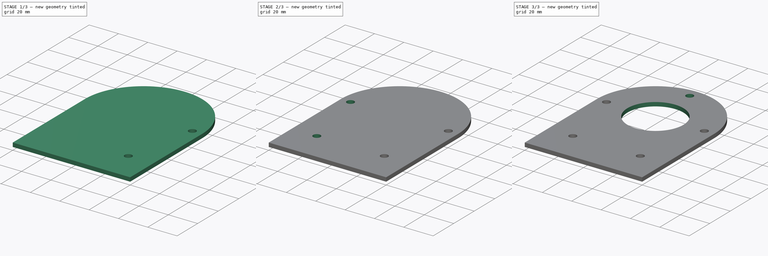
[diagram: build sequence overview — one tinted view per stage of 3, left to right]
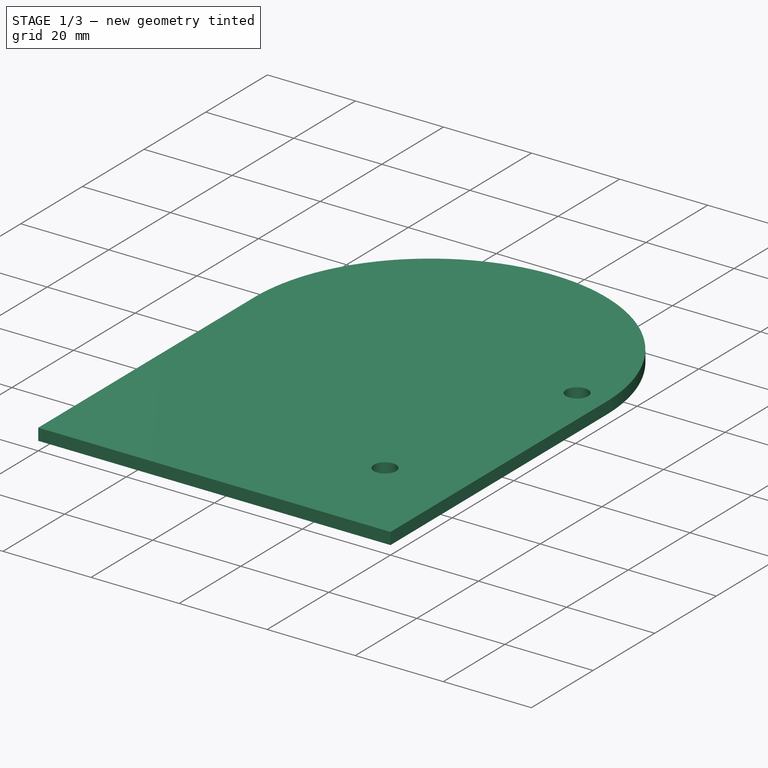
[diagram: stage 1 of 3 — iso view after this stage's code; geometry added in this stage tinted green]
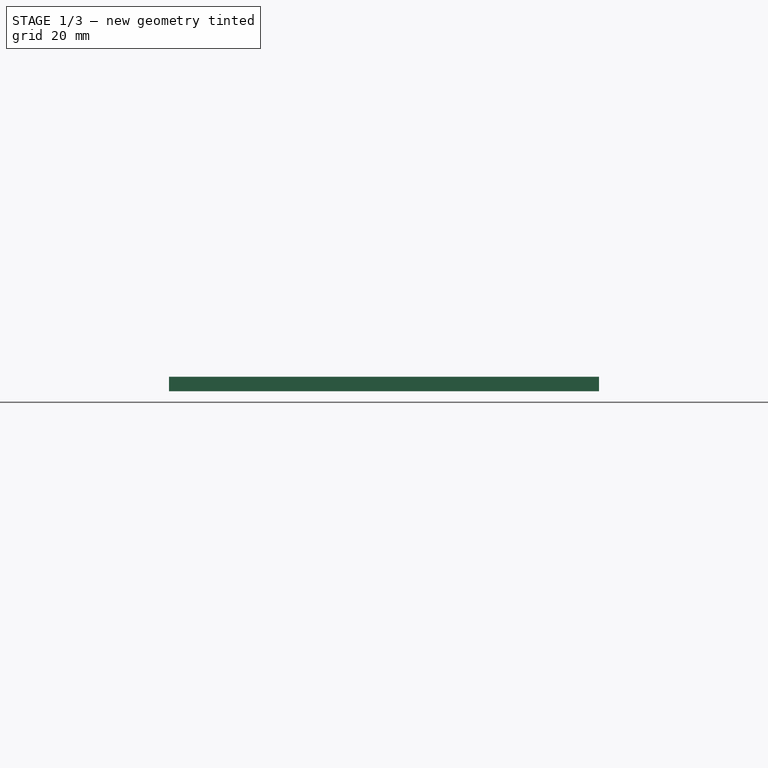
[diagram: stage 1 of 3 — front view after this stage's code; geometry added in this stage tinted green]
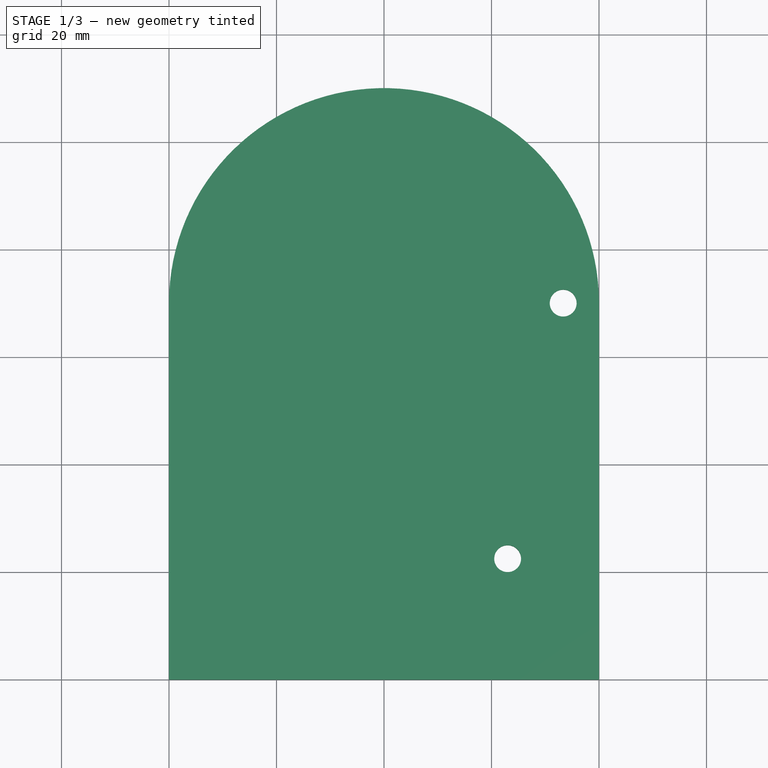
[diagram: stage 1 of 3 — top view after this stage's code; geometry added in this stage tinted green]
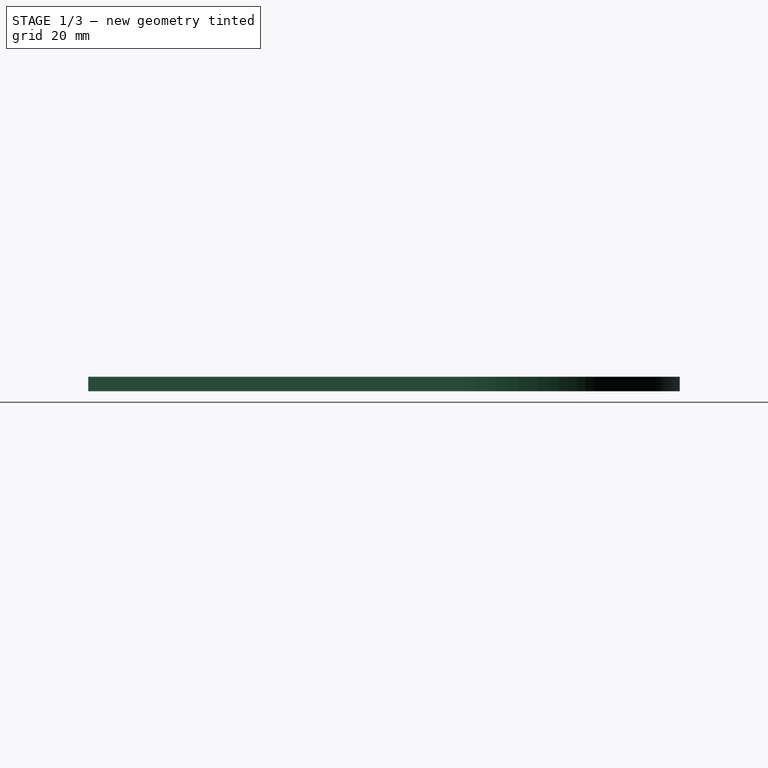
[diagram: stage 1 of 3 — right view after this stage's code; geometry added in this stage tinted green]
FCSTD DOCUMENT  (FreeCAD 0.15R4664 (Git))
Label: Motor_Base
License: CC-BY 3.0
LicenseURL: http://creativecommons.org/licenses/by/3.0/
objects: Drawing::FeatureView×23, Sketcher::SketchObject×4, PartDesign::Pocket×3, Drawing::FeatureViewPart×3, PartDesign::Pad×1, PartDesign::Mirrored×1, Drawing::FeaturePage×1
note: 13 computed .brp shape members not serialized (recipe doc carries the construction recipe); baked Part::Feature solids carry a one-line shape summary decoded from their .brp

FEATURE [Sketcher::SketchObject] Sketch
  sketch-geometry (4):
    g0: LineSegment StartX=40 StartY=70.05 StartZ=0 EndX=40 EndY=0 EndZ=0
    g1: LineSegment StartX=40 StartY=0 StartZ=0 EndX=-40 EndY=0 EndZ=0
    g2: LineSegment StartX=-40 StartY=0 StartZ=0 EndX=-40 EndY=70.05 EndZ=0
    g3: ArcOfCircle CenterX=0 CenterY=70.05 CenterZ=0 NormalX=0 NormalY=0 NormalZ=1 Radius=40 StartAngle=0 EndAngle=3.14159
  constraints (13):
    c: Coincident(g0,g1)
    c: Coincident(g1,g2)
    c: Horizontal(g1)
    c: Vertical(g0)
    c: Vertical(g2)
    c: PointOnObject(g0,g-1)
    c: DistanceX(g1,g0) = 80
    c: DistanceX(g-1,g1) = -40
    c: DistanceY(g0,g0) = 70.05
    c: DistanceY(g1,g2) = 70.05
    c: Coincident(g3,g0)
    c: Coincident(g3,g2)
    c: DistanceY(g-1,g3) = 70.05
FEATURE [PartDesign::Pad] Pad
  Length = 2.7
  Length2 = 33.15
  Sketch = -> Sketch
  Type = 0
FEATURE [Sketcher::SketchObject] Sketch001
  ExternalGeometry = -> [Pad]
  Placement = pos=(0,0,2.7) rot=(0,0,1;0rad)
  Support = -> Pad [Face6]
  sketch-geometry (2):
    g0: Circle CenterX=33.333 CenterY=70.05 CenterZ=0 NormalX=0 NormalY=0 NormalZ=1 Radius=2.5
    g1: Circle CenterX=23 CenterY=22.5 CenterZ=0 NormalX=0 NormalY=0 NormalZ=1 Radius=2.5
  constraints (6):
    c: Radius(g0) = 2.5
    c: DistanceX(g-2,g0) = 33.333
    c: DistanceY(g-1,g0) = 70.05
    c: Radius(g1) = 2.5
    c: Distance(g1,g-3) = 17
    c: DistanceY(g-1,g1) = 22.5
FEATURE [PartDesign::Pocket] Pocket
  Length = 5
  Sketch = -> Sketch001
  Type = 0
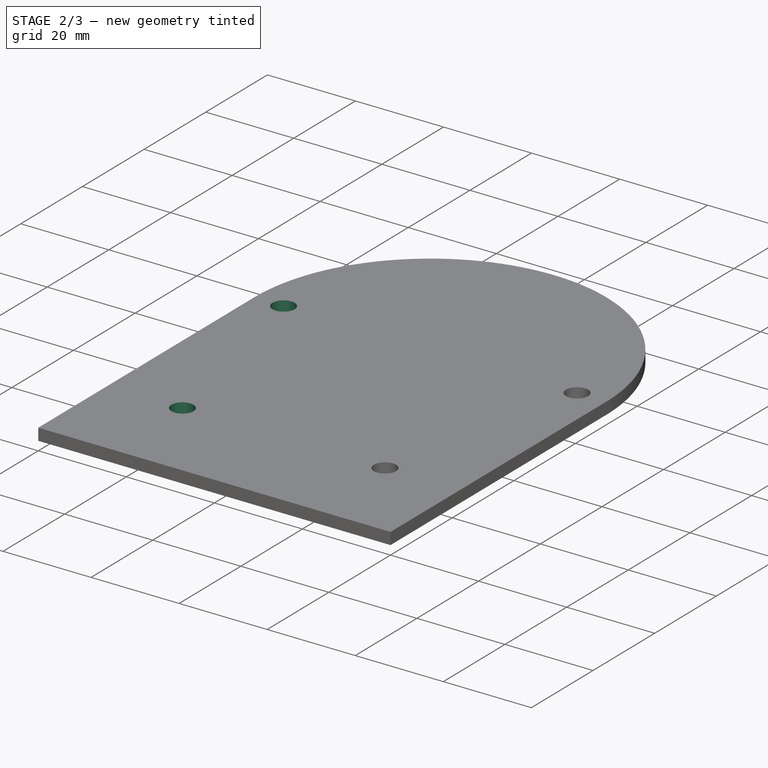
[diagram: stage 2 of 3 — iso view after this stage's code; geometry added in this stage tinted green]
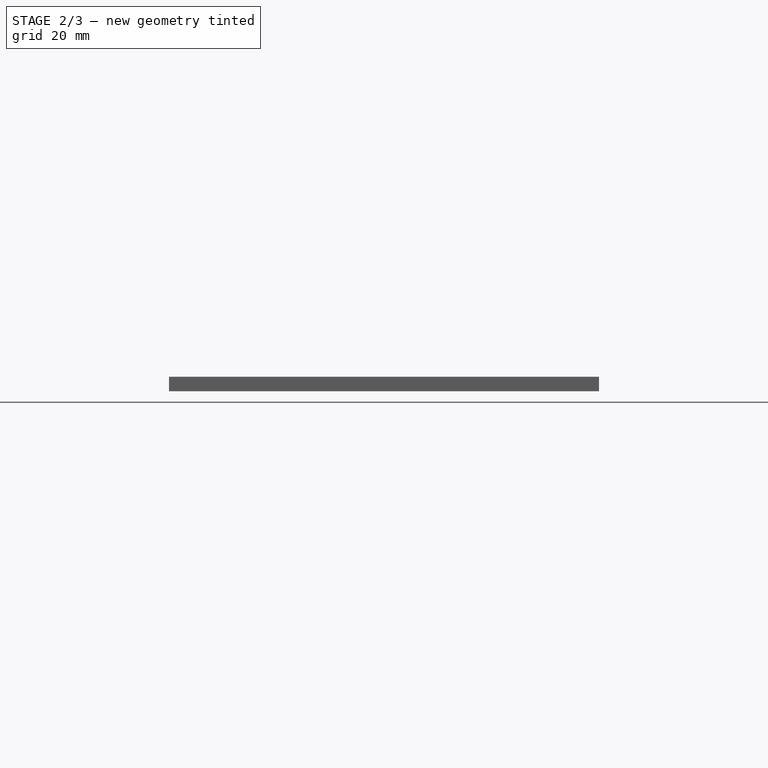
[diagram: stage 2 of 3 — front view after this stage's code; geometry added in this stage tinted green]
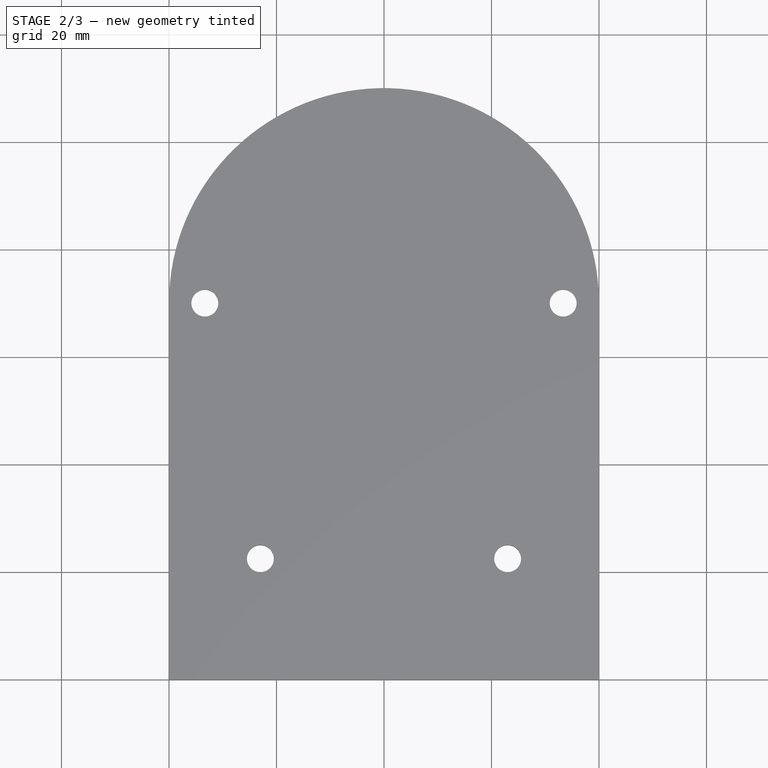
[diagram: stage 2 of 3 — top view after this stage's code; geometry added in this stage tinted green]
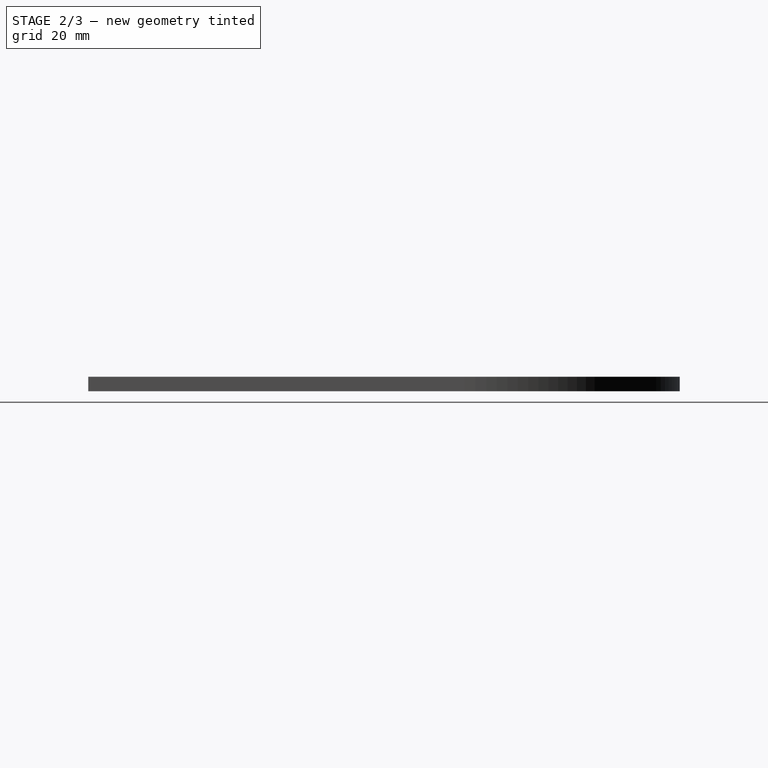
[diagram: stage 2 of 3 — right view after this stage's code; geometry added in this stage tinted green]
FEATURE [PartDesign::Mirrored] Mirrored
  MirrorPlane = -> Sketch001 [V_Axis]
  Originals = -> [Pocket]
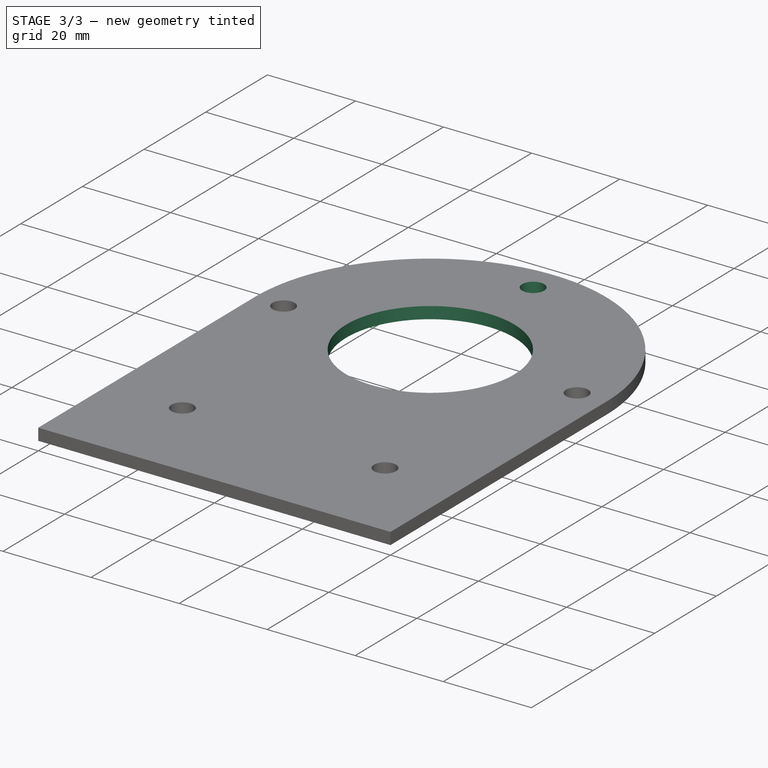
[diagram: stage 3 of 3 — iso view after this stage's code; geometry added in this stage tinted green]
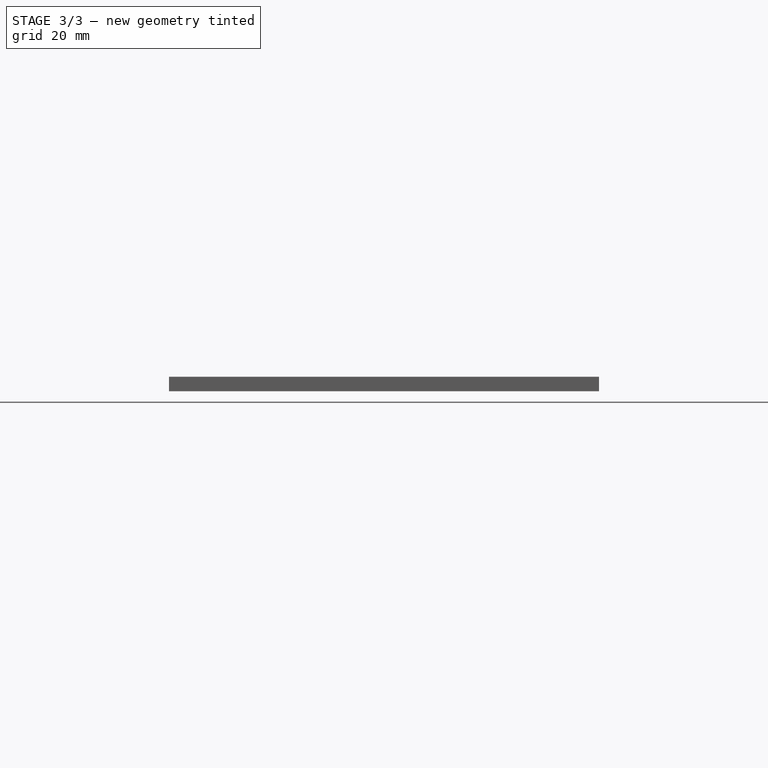
[diagram: stage 3 of 3 — front view after this stage's code; geometry added in this stage tinted green]
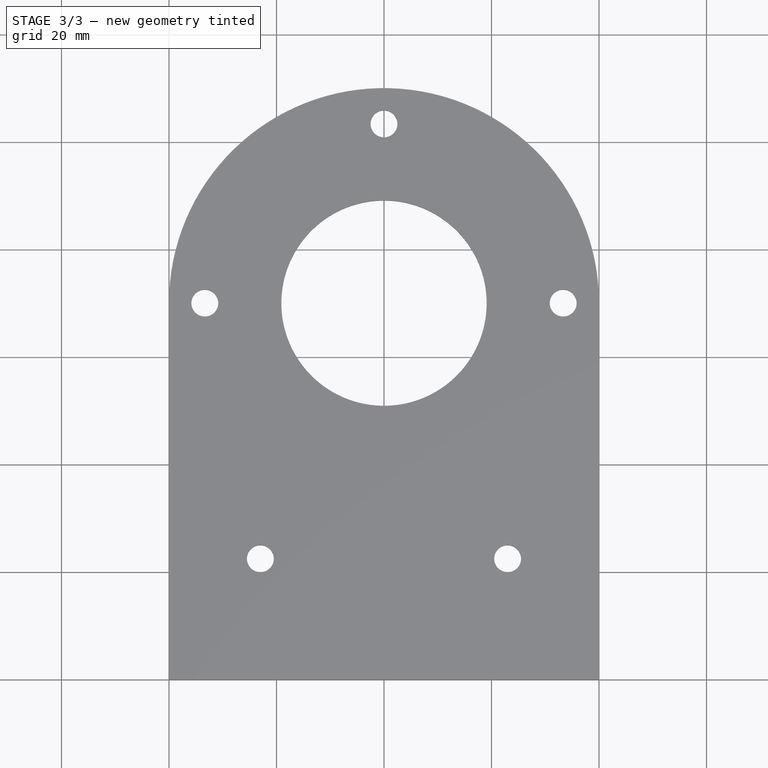
[diagram: stage 3 of 3 — top view after this stage's code; geometry added in this stage tinted green]
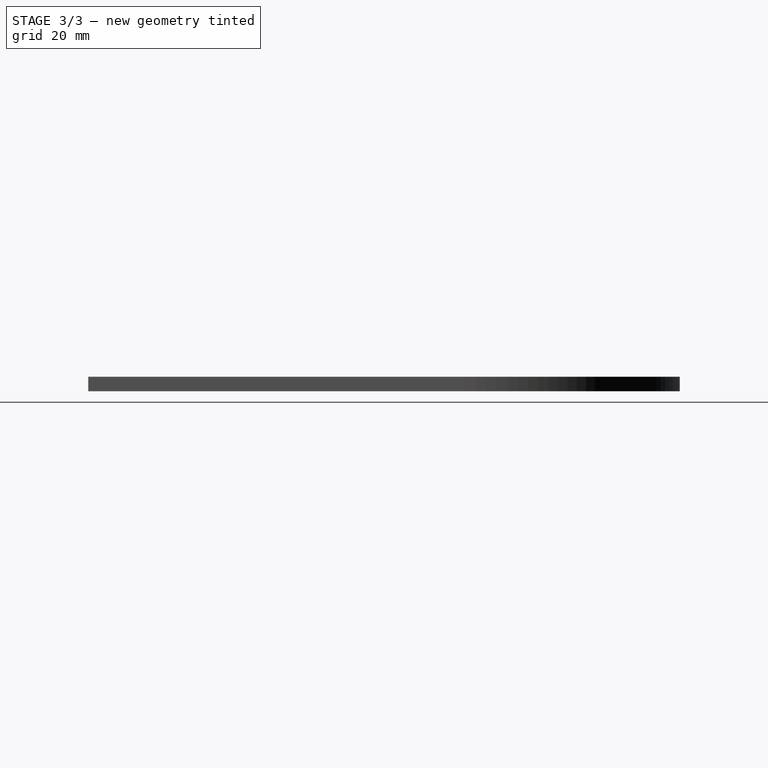
[diagram: stage 3 of 3 — right view after this stage's code; geometry added in this stage tinted green]
FEATURE [Sketcher::SketchObject] Sketch002
  Placement = pos=(0,0,2.7) rot=(0,0,1;0rad)
  Support = -> Mirrored [Face5]
  sketch-geometry (1):
    g0: Circle CenterX=0 CenterY=103.4 CenterZ=0 NormalX=0 NormalY=0 NormalZ=1 Radius=2.5
  constraints (3):
    c: PointOnObject(g0,g-2)
    c: Radius(g0) = 2.5
    c: DistanceY(g-1,g0) = 103.4
FEATURE [PartDesign::Pocket] Pocket001
  Length = 5
  Sketch = -> Sketch002
  Type = 0
FEATURE [Sketcher::SketchObject] Sketch003
  Placement = pos=(0,0,2.7) rot=(0,0,1;0rad)
  Support = -> Pocket001 [Face5]
  sketch-geometry (1):
    g0: Circle CenterX=0 CenterY=70.05 CenterZ=0 NormalX=0 NormalY=0 NormalZ=1 Radius=19.1
  constraints (3):
    c: PointOnObject(g0,g-2)
    c: Radius(g0) = 19.1
    c: DistanceY(g-1,g0) = 70.05
FEATURE [PartDesign::Pocket] Pocket002
  Length = 5
  Sketch = -> Sketch003
  Type = 0
FEATURE [Drawing::FeatureViewPart] Ortho  label="Ortho_0_0"
  Direction = (1,0,0)
  HiddenWidth = 0.15
  LineWidth = 0.35
  Rotation = -90
  ShowHiddenLines = false
  ShowSmoothLines = false
  Source = -> Pocket002
  Tolerance = 0.05
  ViewResult = <g id="Ortho_0_0"\n   transform="rotate(-90,160,140.233) translate(160,140.233) scale(1,1)"\n  >\n<g   stroke="rgb(0, 0, 0)"\n   stroke-width="0.35"\n   stroke-linecap="butt"\n   stroke-linejoin="miter"\n   fill="none"\n   transform="scale(1,-1)"\n  >\n<path id= "1" d=" M 2.7 -110.05 L 0 -110.05 " />\n</g>\n<g   stroke="rgb(0, 0, 0)"\n   stroke-width="0.35"\n   stroke-linecap="butt"\n   stroke-linejoin="miter"\n   fill="none"\n   transform="scale(1,-1)"\n  >\n<path id= "1" d=" M 0 0 L 2.7 0 " />\n<path id= "2" d=" M 0 -70.05 L 0 0 " />\n<path id= "3" d=" M 2.7 -70.05 L 2.7 0 " />\n<path d="M0,-70.05 L0,-74.5286  L0,-78.9508  L0,-83.2612  L0,-87.4053  L0,-91.3313  L0,-94.9896  L0,-98.3343  L0,-101.323  L0,-103.919  L0,-106.089  L0,-107.805  L0,-109.047  L0,-109.798  L0,-110.05 " /><path d="M2.7,-70.05 L2.7,-74.5286  L2.7,-78.9508  L2.7,-83.2612  L2.7,-87.4053  L2.7,-91.3313  L2.7,-94.9896  L2.7,-98.3343  L2.7,-101.323  L2.7,-103.919  L2.7,-106.089  L2.7,-107.805  L2.7,-109.047  L2.7,-109.798  L2.7,-110.05 " /></g>\n</g>
  Visible = true
  X = 160
  Y = 140.233
FEATURE [Drawing::FeatureViewPart] Ortho001  label="Ortho_0_1"
  Direction = (0,0,1)
  HiddenWidth = 0.15
  LineWidth = 0.35
  Rotation = 90
  ShowHiddenLines = false
  ShowSmoothLines = false
  Source = -> Pocket002
  Tolerance = 0.05
  ViewResult = <g id="Ortho_0_1"\n   transform="rotate(90,160,73.77) translate(160,73.77) scale(1,1)"\n  >\n<g   stroke="rgb(0, 0, 0)"\n   stroke-width="0.35"\n   stroke-linecap="butt"\n   stroke-linejoin="miter"\n   fill="none"\n   transform="scale(1,-1)"\n  >\n<path id= "1" d=" M 40 70.05 L 40 0 " />\n<path d="M40 70.05 A40 40 0 0 1 -40 70.05" /><path id= "3" d=" M 40 0 L -40 0 " />\n<path id= "4" d=" M -40 0 L -40 70.05 " />\n<circle cx ="23" cy ="22.5" r ="2.5" /><circle cx ="33.333" cy ="70.05" r ="2.5" /><circle cx ="-33.333" cy ="70.05" r ="2.5" /><circle cx ="-23" cy ="22.5" r ="2.5" /><circle cx ="0" cy ="103.4" r ="2.5" /><circle cx ="0" cy ="70.05" r ="19.1" /></g>\n</g>
  Visible = true
  X = 160
  Y = 73.77
FEATURE [Drawing::FeatureViewPart] Ortho002  label="Ortho_-1_1"
  Direction = (0.57735,-0.57735,0.57735)
  HiddenWidth = 0.15
  LineWidth = 0.35
  Rotation = 60
  ShowHiddenLines = false
  ShowSmoothLines = false
  Source = -> Pocket002
  Tolerance = 0.05
  ViewResult = <blob: 2697 chars omitted>
  Visible = true
  X = 60
  Y = 97.3328
FEATURE [Drawing::FeatureView] centerLines001
  Rotation = 0
  ViewResult = <g  transform="scale(1.000000,1.000000)" stroke="rgb(0,0,255)"  stroke-width="0.300000" >\n<path d="M 230.050000,40.437000 L 230.050000,42.437000 M 230.050000,44.437000 L 230.050000,50.437000 M 230.050000,52.437000 L 230.050000,54.437000 M 230.050000,56.437000 L 230.050000,62.437000 M 230.050000,64.437000 L 230.050000,66.437000 M 230.050000,68.437000 L 230.050000,74.437000 M 230.050000,76.437000 L 230.050000,78.437000 M 230.050000,80.437000 L 230.050000,86.437000 M 230.050000,88.437000 L 230.050000,90.437000 M 230.050000,92.437000 L 230.050000,98.437000 M 230.050000,100.437000 L 230.050000,102.437000 M 230.050000,104.437000 L 230.050000,110.437000 "/>\n<path d="M 230.050000,40.437000 L 230.050000,38.437000 M 230.050000,36.437000 L 230.050000,36.088545 "/>\n</g> 
  Visible = true
  X = 0
  Y = 0
FEATURE [Drawing::FeatureView] centerLines002
  Rotation = 0
  ViewResult = <g  transform="scale(1.000000,1.000000)" stroke="rgb(0,0,255)"  stroke-width="0.300000" >\n<path d="M 227.550000,40.437000 L 229.550000,40.437000 M 231.550000,40.437000 L 234.894215,40.437000 "/>\n<path d="M 227.550000,40.437000 L 225.550000,40.437000 "/>\n</g> 
  Visible = true
  X = 0
  Y = 0
FEATURE [Drawing::FeatureView] centerLines003
  Rotation = 0
  ViewResult = <g  transform="scale(1.000000,1.000000)" stroke="rgb(0,0,255)"  stroke-width="0.300000" >\n<path d="M 227.550000,107.103000 L 229.550000,107.103000 M 231.550000,107.103000 L 235.152137,107.103000 "/>\n<path d="M 227.550000,107.103000 L 225.550000,107.103000 "/>\n</g> 
  Visible = true
  X = 0
  Y = 0
FEATURE [Drawing::FeatureView] dim002
  Rotation = 0
  ViewResult = <g   >\n<line x1="158.000000" y1="137.533000" x2="152.165101" y2="137.533000" style="stroke:rgb(0,0,255);stroke-width:0.30" />\n<line x1="158.000000" y1="140.233000" x2="152.165101" y2="140.233000" style="stroke:rgb(0,0,255);stroke-width:0.30" />\n<line x1="153.165101" y1="137.533000" x2="153.165101" y2="140.233000" style="stroke:rgb(0,0,255);stroke-width:0.30" />\n<polygon points="153.165101,137.533000 154.165101,134.533000 153.165101,133.533000 152.165101,134.533000" style="fill:rgb(0,0,255);stroke:rgb(0,0,255);stroke-width:0" /><polygon points="153.165101,140.233000 152.165101,143.233000 153.165101,144.233000 154.165101,143.233000" style="fill:rgb(0,0,255);stroke:rgb(0,0,255);stroke-width:0" />\n<text x="149.592515" y="141.611207" font-family="Verdana" font-size="3.6" fill="rgb(255,0,0)" text-anchor="inherit" transform="rotate(-90.000000 149.592515,141.611207)" >2.7</text>\n</g> 
  Visible = true
  X = 0
  Y = 0
FEATURE [Drawing::FeatureView] dim003
  Rotation = 0
  ViewResult = <g   >\n<line x1="160.000000" y1="135.533000" x2="160.000000" y2="133.134136" style="stroke:rgb(0,0,255);stroke-width:0.30" />\n<line x1="270.050000" y1="135.533000" x2="270.050000" y2="133.134136" style="stroke:rgb(0,0,255);stroke-width:0.30" />\n<line x1="160.000000" y1="134.134136" x2="270.050000" y2="134.134136" style="stroke:rgb(0,0,255);stroke-width:0.30" />\n<polygon points="160.000000,134.134136 163.000000,135.134136 164.000000,134.134136 163.000000,133.134136" style="fill:rgb(0,0,255);stroke:rgb(0,0,255);stroke-width:0" /><polygon points="270.050000,134.134136 267.050000,133.134136 266.050000,134.134136 267.050000,135.134136" style="fill:rgb(0,0,255);stroke:rgb(0,0,255);stroke-width:0" />\n<text x="207.584790" y="132.873180" font-family="Verdana" font-size="3.6" fill="rgb(255,0,0)" text-anchor="inherit" transform="rotate(0.000000 207.584790,132.873180)" >110.05</text>\n</g> 
  Visible = true
  X = 0
  Y = 0
FEATURE [Drawing::FeatureView] dim004
  Rotation = 0
  ViewResult = <g   >\n<line x1="158.000000" y1="33.770000" x2="154.314202" y2="33.770000" style="stroke:rgb(0,0,255);stroke-width:0.30" />\n<line x1="158.000000" y1="113.770000" x2="154.314202" y2="113.770000" style="stroke:rgb(0,0,255);stroke-width:0.30" />\n<line x1="155.314202" y1="33.770000" x2="155.314202" y2="113.770000" style="stroke:rgb(0,0,255);stroke-width:0.30" />\n<polygon points="155.314202,33.770000 154.314202,36.770000 155.314202,37.770000 156.314202,36.770000" style="fill:rgb(0,0,255);stroke:rgb(0,0,255);stroke-width:0" /><polygon points="155.314202,113.770000 156.314202,110.770000 155.314202,109.770000 154.314202,110.770000" style="fill:rgb(0,0,255);stroke:rgb(0,0,255);stroke-width:0" />\n<text x="152.960957" y="95.306442" font-family="Verdana" font-size="3.6" fill="rgb(255,0,0)" text-anchor="inherit" transform="rotate(-90.000000 152.960957,95.306442)" >80mm</text>\n</g> 
  Visible = true
  X = 0
  Y = 0
FEATURE [Drawing::FeatureView] centerLines004
  Rotation = 0
  ViewResult = <g  transform="scale(1.000000,1.000000)" stroke="rgb(0,0,255)"  stroke-width="0.300000" >\n<path d="M 182.500000,50.770000 L 182.500000,52.770000 M 182.500000,54.770000 L 182.500000,60.770000 M 182.500000,62.770000 L 182.500000,64.770000 M 182.500000,66.770000 L 182.500000,72.770000 M 182.500000,74.770000 L 182.500000,76.770000 M 182.500000,78.770000 L 182.500000,84.770000 M 182.500000,86.770000 L 182.500000,88.770000 M 182.500000,90.770000 L 182.500000,96.770000 M 182.500000,98.770000 L 182.500000,100.770000 "/>\n<path d="M 182.500000,50.770000 L 182.500000,48.770000 M 182.500000,46.770000 L 182.500000,45.065157 "/>\n</g> 
  Visible = true
  X = 0
  Y = 0
FEATURE [Drawing::FeatureView] centerLines005
  Rotation = 0
  ViewResult = <g  transform="scale(1.000000,1.000000)" stroke="rgb(0,0,255)"  stroke-width="0.300000" >\n<path d="M 180.000000,50.770000 L 182.000000,50.770000 M 184.000000,50.770000 L 187.685154,50.770000 "/>\n<path d="M 180.000000,50.770000 L 178.000000,50.770000 "/>\n</g> 
  Visible = true
  X = 0
  Y = 0
FEATURE [Drawing::FeatureView] centerLines006
  Rotation = 0
  ViewResult = <g  transform="scale(1.000000,1.000000)" stroke="rgb(0,0,255)"  stroke-width="0.300000" >\n<path d="M 180.000000,96.770000 L 182.000000,96.770000 M 184.000000,96.770000 L 187.567123,96.770000 "/>\n<path d="M 180.000000,96.770000 L 178.000000,96.770000 "/>\n</g> 
  Visible = true
  X = 0
  Y = 0
FEATURE [Drawing::FeatureView] dim005
  Rotation = 0
  ViewResult = <g   >\n<line x1="189.685154" y1="50.770000" x2="194.241422" y2="50.770000" style="stroke:rgb(0,0,255);stroke-width:0.30" />\n<line x1="189.567123" y1="96.770000" x2="194.241422" y2="96.770000" style="stroke:rgb(0,0,255);stroke-width:0.30" />\n<line x1="193.241422" y1="50.770000" x2="193.241422" y2="96.770000" style="stroke:rgb(0,0,255);stroke-width:0.30" />\n<polygon points="193.241422,50.770000 192.241422,53.770000 193.241422,54.770000 194.241422,53.770000" style="fill:rgb(0,0,255);stroke:rgb(0,0,255);stroke-width:0" /><polygon points="193.241422,96.770000 194.241422,93.770000 193.241422,92.770000 192.241422,93.770000" style="fill:rgb(0,0,255);stroke:rgb(0,0,255);stroke-width:0" />\n<text x="197.339527" y="78.809715" font-family="Verdana" font-size="3.6" fill="rgb(255,0,0)" text-anchor="inherit" transform="rotate(-90.000000 197.339527,78.809715)" >46mm</text>\n</g> 
  Visible = true
  X = 0
  Y = 0
FEATURE [Drawing::FeatureView] centerLines007
  Rotation = 0
  ViewResult = <g  transform="scale(1.000000,1.000000)" stroke="rgb(0,0,255)"  stroke-width="0.300000" >\n<path d="M 260.900000,73.770000 L 262.900000,73.770000 M 264.900000,73.770000 L 268.204536,73.770000 "/>\n<path d="M 260.900000,73.770000 L 258.900000,73.770000 "/>\n</g> 
  Visible = true
  X = 0
  Y = 0
FEATURE [Drawing::FeatureView] centerLines008
  Rotation = 0
  ViewResult = <g  transform="scale(1.000000,1.000000)" stroke="rgb(0,0,255)"  stroke-width="0.300000" >\n<path d="M 263.400000,71.270000 L 263.400000,73.270000 M 263.400000,75.270000 L 263.400000,78.771031 "/>\n<path d="M 263.400000,71.270000 L 263.400000,69.270000 "/>\n</g> 
  Visible = true
  X = 0
  Y = 0
FEATURE [Drawing::FeatureView] dim006
  Rotation = 0
  ViewResult = <g   >\n<line x1="160.000000" y1="115.770000" x2="160.000000" y2="119.847696" style="stroke:rgb(0,0,255);stroke-width:0.30" />\n<line x1="182.500000" y1="102.770000" x2="182.500000" y2="119.847696" style="stroke:rgb(0,0,255);stroke-width:0.30" />\n<line x1="160.000000" y1="118.847696" x2="182.500000" y2="118.847696" style="stroke:rgb(0,0,255);stroke-width:0.30" />\n<polygon points="160.000000,118.847696 163.000000,119.847696 164.000000,118.847696 163.000000,117.847696" style="fill:rgb(0,0,255);stroke:rgb(0,0,255);stroke-width:0" /><polygon points="182.500000,118.847696 179.500000,117.847696 178.500000,118.847696 179.500000,119.847696" style="fill:rgb(0,0,255);stroke:rgb(0,0,255);stroke-width:0" />\n<text x="162.856152" y="124.317674" font-family="Verdana" font-size="3.6" fill="rgb(255,0,0)" text-anchor="inherit"  >22.5mm</text>\n</g> 
  Visible = true
  X = 0
  Y = 0
FEATURE [Drawing::FeatureView] dim007
  Rotation = 0
  ViewResult = <g   >\n<line x1="232.050000" y1="113.770000" x2="274.598336" y2="113.770000" style="stroke:rgb(0,0,255);stroke-width:0.30" />\n<line x1="270.204536" y1="73.770000" x2="274.598336" y2="73.770000" style="stroke:rgb(0,0,255);stroke-width:0.30" />\n<line x1="273.598336" y1="113.770000" x2="273.598336" y2="73.770000" style="stroke:rgb(0,0,255);stroke-width:0.30" />\n<polygon points="273.598336,113.770000 274.598336,110.770000 273.598336,109.770000 272.598336,110.770000" style="fill:rgb(0,0,255);stroke:rgb(0,0,255);stroke-width:0" /><polygon points="273.598336,73.770000 272.598336,76.770000 273.598336,77.770000 274.598336,76.770000" style="fill:rgb(0,0,255);stroke:rgb(0,0,255);stroke-width:0" />\n<text x="278.372135" y="100.846497" font-family="Verdana" font-size="3.6" fill="rgb(255,0,0)" text-anchor="inherit" transform="rotate(-90.000000 278.372135,100.846497)" >40mm</text>\n</g> 
  Visible = true
  X = 0
  Y = 0
FEATURE [Drawing::FeatureView] dim008
  Rotation = 0
  ViewResult = <g   >\n<line x1="230.050000" y1="31.770000" x2="230.050000" y2="23.764081" style="stroke:rgb(0,0,255);stroke-width:0.30" />\n<line x1="263.400000" y1="67.270000" x2="263.400000" y2="23.764081" style="stroke:rgb(0,0,255);stroke-width:0.30" />\n<line x1="230.050000" y1="24.764081" x2="263.400000" y2="24.764081" style="stroke:rgb(0,0,255);stroke-width:0.30" />\n<polygon points="230.050000,24.764081 233.050000,25.764081 234.050000,24.764081 233.050000,23.764081" style="fill:rgb(0,0,255);stroke:rgb(0,0,255);stroke-width:0" /><polygon points="263.400000,24.764081 260.400000,23.764081 259.400000,24.764081 260.400000,25.764081" style="fill:rgb(0,0,255);stroke:rgb(0,0,255);stroke-width:0" />\n<text x="242.270282" y="21.780456" font-family="Verdana" font-size="3.6" fill="rgb(255,0,0)" text-anchor="inherit"  >33.35mm</text>\n</g> 
  Visible = true
  X = 0
  Y = 0
FEATURE [Drawing::FeatureView] dim009
  Rotation = 0
  ViewResult = <g   >\n<line x1="162.000000" y1="113.770000" x2="194.192106" y2="113.770000" style="stroke:rgb(0,0,255);stroke-width:0.30" />\n<line x1="189.567123" y1="96.770000" x2="194.192106" y2="96.770000" style="stroke:rgb(0,0,255);stroke-width:0.30" />\n<line x1="193.192106" y1="113.770000" x2="193.192106" y2="96.770000" style="stroke:rgb(0,0,255);stroke-width:0.30" />\n<polygon points="193.192106,113.770000 194.192106,110.770000 193.192106,109.770000 192.192106,110.770000" style="fill:rgb(0,0,255);stroke:rgb(0,0,255);stroke-width:0" /><polygon points="193.192106,96.770000 192.192106,99.770000 193.192106,100.770000 194.192106,99.770000" style="fill:rgb(0,0,255);stroke:rgb(0,0,255);stroke-width:0" />\n<text x="197.644603" y="107.264698" font-family="Verdana" font-size="3.6" fill="rgb(255,0,0)" text-anchor="inherit" transform="rotate(-90.000000 197.644603,107.264698)" >17mm</text>\n</g> 
  Visible = true
  X = 0
  Y = 0
FEATURE [Drawing::FeatureView] dim010
  Rotation = 0
  ViewResult = <g   >\n<line x1="162.000000" y1="33.770000" x2="194.249931" y2="33.770000" style="stroke:rgb(0,0,255);stroke-width:0.30" />\n<line x1="189.685154" y1="50.770000" x2="194.249931" y2="50.770000" style="stroke:rgb(0,0,255);stroke-width:0.30" />\n<line x1="193.249931" y1="33.770000" x2="193.249931" y2="50.770000" style="stroke:rgb(0,0,255);stroke-width:0.30" />\n<polygon points="193.249931,33.770000 192.249931,36.770000 193.249931,37.770000 194.249931,36.770000" style="fill:rgb(0,0,255);stroke:rgb(0,0,255);stroke-width:0" /><polygon points="193.249931,50.770000 194.249931,47.770000 193.249931,46.770000 192.249931,47.770000" style="fill:rgb(0,0,255);stroke:rgb(0,0,255);stroke-width:0" />\n<text x="197.549687" y="47.942577" font-family="Verdana" font-size="3.6" fill="rgb(255,0,0)" text-anchor="inherit" transform="rotate(-90.000000 197.549687,47.942577)" >17mm</text>\n</g> 
  Visible = true
  X = 0
  Y = 0
FEATURE [Drawing::FeatureView] dim011
  Rotation = 0
  ViewResult = <g   >\n<line x1="236.894215" y1="40.437000" x2="251.236608" y2="40.437000" style="stroke:rgb(0,0,255);stroke-width:0.30" />\n<line x1="237.152137" y1="107.103000" x2="251.236608" y2="107.103000" style="stroke:rgb(0,0,255);stroke-width:0.30" />\n<line x1="250.236608" y1="40.437000" x2="250.236608" y2="107.103000" style="stroke:rgb(0,0,255);stroke-width:0.30" />\n<polygon points="250.236608,40.437000 249.236608,43.437000 250.236608,44.437000 251.236608,43.437000" style="fill:rgb(0,0,255);stroke:rgb(0,0,255);stroke-width:0" /><polygon points="250.236608,107.103000 251.236608,104.103000 250.236608,103.103000 249.236608,104.103000" style="fill:rgb(0,0,255);stroke:rgb(0,0,255);stroke-width:0" />\n<text x="254.397761" y="91.545365" font-family="Verdana" font-size="3.6" fill="rgb(255,0,0)" text-anchor="inherit" transform="rotate(-90.000000 254.397761,91.545365)" >66.666mm</text>\n</g> 
  Visible = true
  X = 0
  Y = 0
FEATURE [Drawing::FeatureView] dim012
  Rotation = 0
  ViewResult = <g   >\n<line x1="228.050000" y1="73.770000" x2="207.853692" y2="73.770000" style="stroke:rgb(0,0,255);stroke-width:0.30" />\n<line x1="228.050000" y1="33.770000" x2="207.853692" y2="33.770000" style="stroke:rgb(0,0,255);stroke-width:0.30" />\n<line x1="208.853692" y1="73.770000" x2="208.853692" y2="33.770000" style="stroke:rgb(0,0,255);stroke-width:0.30" />\n<polygon points="208.853692,73.770000 209.853692,70.770000 208.853692,69.770000 207.853692,70.770000" style="fill:rgb(0,0,255);stroke:rgb(0,0,255);stroke-width:0" /><polygon points="208.853692,33.770000 207.853692,36.770000 208.853692,37.770000 209.853692,36.770000" style="fill:rgb(0,0,255);stroke:rgb(0,0,255);stroke-width:0" />\n<text x="207.660242" y="59.970846" font-family="Verdana" font-size="3.6" fill="rgb(255,0,0)" text-anchor="inherit" transform="rotate(-90.000000 207.660242,59.970846)" >40mm</text>\n</g> 
  Visible = true
  X = 0
  Y = 0
FEATURE [Drawing::FeatureView] dim013
  Rotation = 0
  ViewResult = <g   >\n <circle cx ="182.500000" cy ="50.770000" r="0.500000" stroke="none" fill="rgb(0,0,255)" /> \n<line x1="163.263914" y1="25.062443" x2="183.997777" y2="52.771665" style="stroke:rgb(0,0,255);stroke-width:0.30" />\n<polygon points="181.002223,48.768335 180.005556,45.767226 178.605779,45.565671 178.404224,46.965448" style="fill:rgb(0,0,255);stroke:rgb(0,0,255);stroke-width:0" />\n<polygon points="183.997777,52.771665 184.994444,55.772774 186.394221,55.974329 186.595776,54.574552" style="fill:rgb(0,0,255);stroke:rgb(0,0,255);stroke-width:0" />\n<line x1="163.263914" y1="25.062443" x2="138.917541" y2="25.062443" style="stroke:rgb(0,0,255);stroke-width:0.30" />\n<text x="146.078239" y="22.198164" font-family="Verdana" font-size="3.6" fill="rgb(255,0,0)" text-anchor="inherit"  >5 x 5mm</text>\n<!--5.0-->\n<!--Ø%3.3f-->\n</g> 
  Visible = true
  X = 0
  Y = 0
FEATURE [Drawing::FeatureView] dim014
  Rotation = 0
  ViewResult = <g   >\n<line x1="182.500000" y1="102.770000" x2="182.500000" y2="119.857441" style="stroke:rgb(0,0,255);stroke-width:0.30" />\n<line x1="230.050000" y1="115.770000" x2="230.050000" y2="119.857441" style="stroke:rgb(0,0,255);stroke-width:0.30" />\n<line x1="182.500000" y1="118.857441" x2="230.050000" y2="118.857441" style="stroke:rgb(0,0,255);stroke-width:0.30" />\n<polygon points="182.500000,118.857441 185.500000,119.857441 186.500000,118.857441 185.500000,117.857441" style="fill:rgb(0,0,255);stroke:rgb(0,0,255);stroke-width:0" /><polygon points="230.050000,118.857441 227.050000,117.857441 226.050000,118.857441 227.050000,119.857441" style="fill:rgb(0,0,255);stroke:rgb(0,0,255);stroke-width:0" />\n<text x="192.558405" y="123.599904" font-family="Verdana" font-size="3.6" fill="rgb(255,0,0)" text-anchor="inherit"  >47.55mm</text>\n</g> 
  Visible = true
  X = 0
  Y = 0
FEATURE [Drawing::FeatureView] dim015
  Rotation = 0
  ViewResult = <g   >\n<line x1="232.050000" y1="113.770000" x2="259.978577" y2="113.770000" style="stroke:rgb(0,0,255);stroke-width:0.30" />\n<line x1="237.152137" y1="107.103000" x2="259.978577" y2="107.103000" style="stroke:rgb(0,0,255);stroke-width:0.30" />\n<line x1="258.978577" y1="113.770000" x2="258.978577" y2="107.103000" style="stroke:rgb(0,0,255);stroke-width:0.30" />\n<polygon points="258.978577,113.770000 257.978577,116.770000 258.978577,117.770000 259.978577,116.770000" style="fill:rgb(0,0,255);stroke:rgb(0,0,255);stroke-width:0" /><polygon points="258.978577,107.103000 259.978577,104.103000 258.978577,103.103000 257.978577,104.103000" style="fill:rgb(0,0,255);stroke:rgb(0,0,255);stroke-width:0" />\n<text x="263.697308" y="111.121699" font-family="Verdana" font-size="3.6" fill="rgb(255,0,0)" text-anchor="inherit" transform="rotate(-90.000000 263.697308,111.121699)" >6.667mm</text>\n</g> 
  Visible = true
  X = 0
  Y = 0
FEATURE [Drawing::FeatureView] dim001
  Rotation = 0
  ViewResult = <g   >\n <circle cx ="230.050000" cy ="73.770000" r="0.500000" stroke="none" fill="rgb(0,0,255)" /> \n<line x1="221.706230" y1="27.781370" x2="233.459671" y2="92.563194" style="stroke:rgb(0,0,255);stroke-width:0.30" />\n<polygon points="226.640329,54.976806 226.191943,58.107133 227.354396,58.912553 228.159817,57.750100" style="fill:rgb(0,0,255);stroke:rgb(0,0,255);stroke-width:0" />\n<polygon points="233.459671,92.563194 233.908057,89.432867 232.745604,88.627447 231.940183,89.789900" style="fill:rgb(0,0,255);stroke:rgb(0,0,255);stroke-width:0" />\n<line x1="221.706230" y1="27.781370" x2="202.095851" y2="27.781370" style="stroke:rgb(0,0,255);stroke-width:0.30" />\n<text x="205.364248" y="25.602439" font-family="Verdana" font-size="3.6" fill="rgb(255,0,0)" text-anchor="inherit"  >Ø38.2mm</text>\n<!--38.2-->\n<!--Ø%3.3f-->\n</g> 
  Visible = true
  X = 0
  Y = 0
FEATURE [Drawing::FeaturePage] Page
  EditableTexts = me | myself | my company | type | title | 0001 | 2000-00-00
  Group = -> [Ortho,Ortho001,Ortho002,centerLines001,centerLines002,centerLines003,dim002,dim003,dim004,centerLines004,centerLines005,centerLines006,dim005,centerLines007,centerLines008,dim006,dim007,dim008,dim009,dim010,dim011,dim012,dim013,dim014,dim015,dim001]
  Template = /comum/workspace/FreeCAD/free-cad-code/Build/data/Mod/Drawing/Templates/A4_Landscape_ISO7200.svg
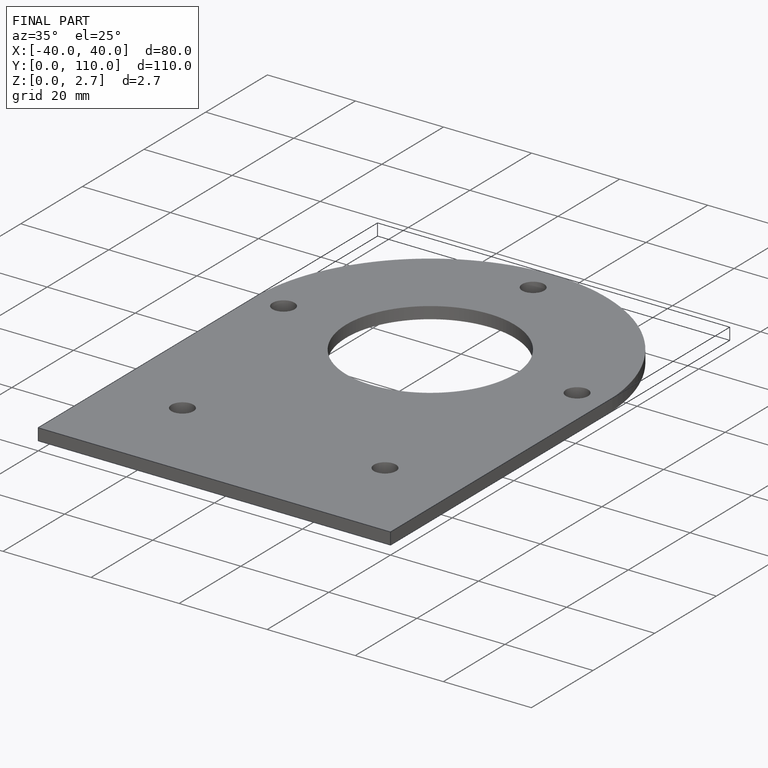
[diagram: finished part — iso view with bounding-box wireframe]
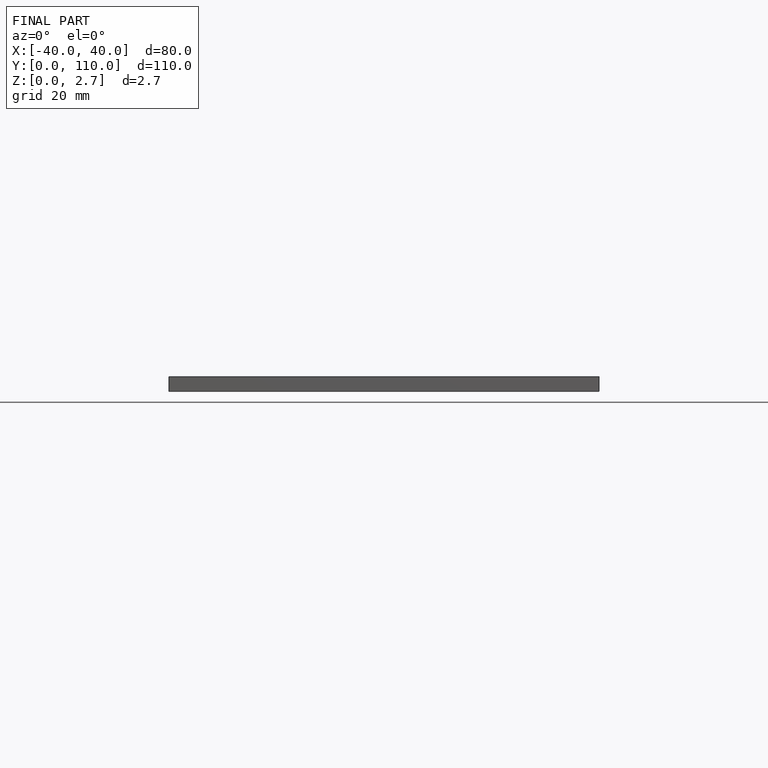
[diagram: finished part — front view with bounding-box wireframe]
